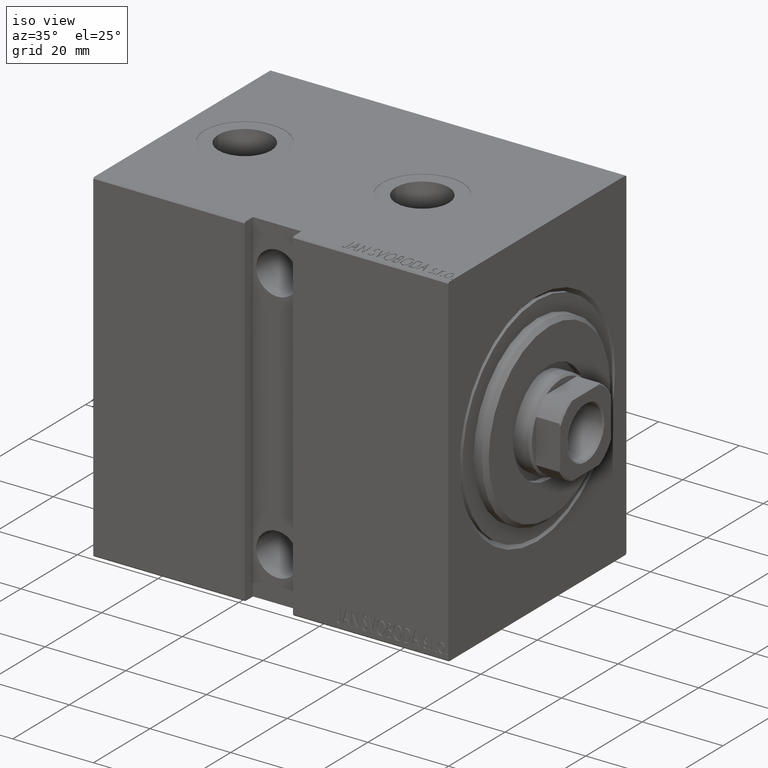
[diagram: clean part render]
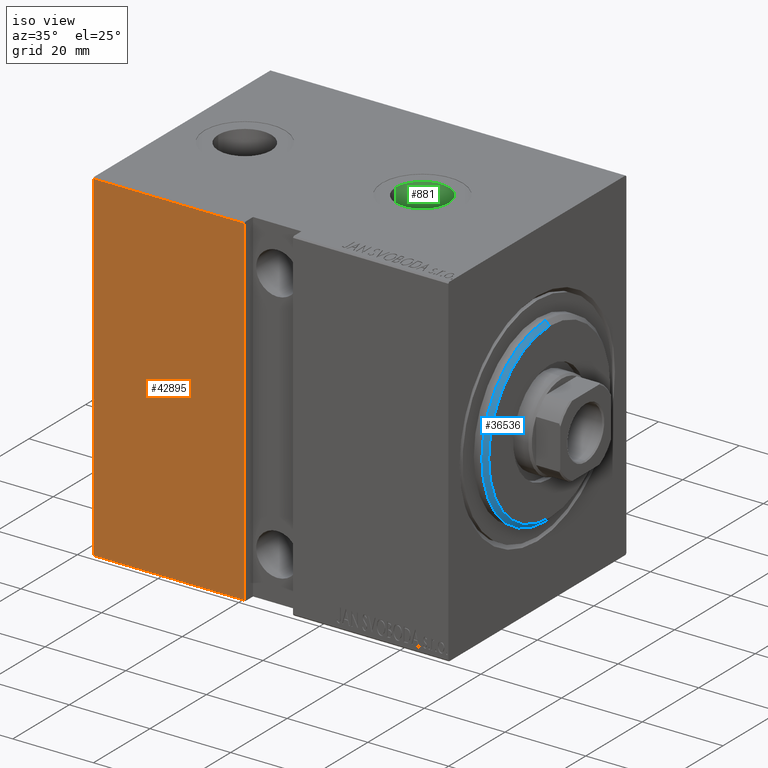
[diagram: same view with three faces highlighted in distinct colors, each labeled with its STEP entity id]
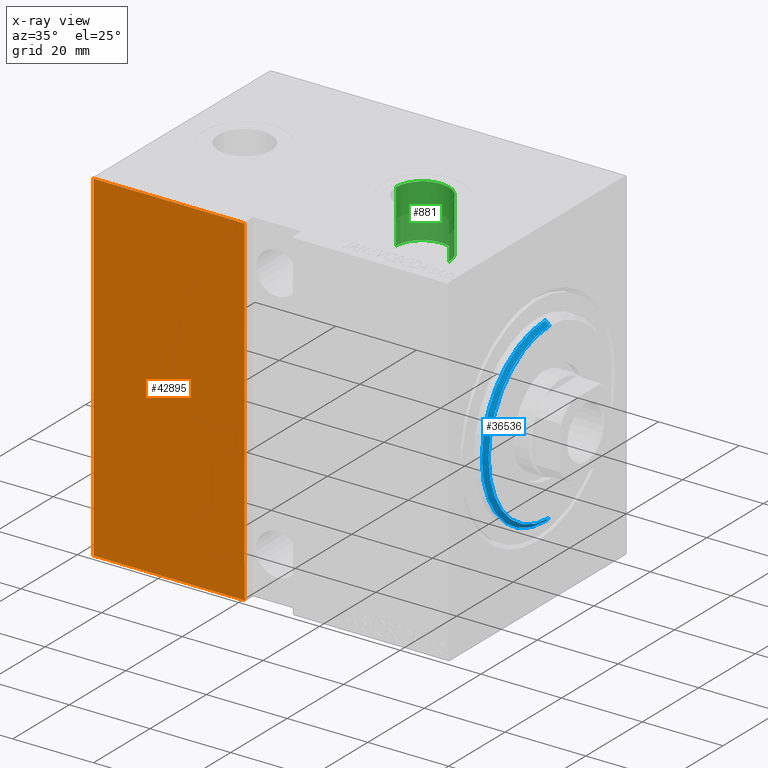
[diagram: x-ray of the same camera — body ghosted, the three highlighted faces saturated]
A machine part, iso view with three faces highlighted in distinct colors.
The next image is the same camera in x-ray (body ghosted, the three faces saturated) — at least one of them is partly hidden behind the body in this view.
Their STEP definitions:

[orange] entity #42895 — the highlighted planar face has unit normal (-0, 1, -0).
#139 = EDGE_CURVE ( 'NONE', #5628, #21117, #5550, .T. ) ;
#730 = PLANE ( 'NONE',  #8595 ) ;
#834 = VERTEX_POINT ( 'NONE', #21689 ) ;
#1500 = CARTESIAN_POINT ( 'NONE',  ( 50.49999999999999289, 31.50000000000000711, -42.50000000000000711 ) ) ;
#2808 = ORIENTED_EDGE ( 'NONE', *, *, #38227, .F. ) ;
#3065 = EDGE_LOOP ( 'NONE', ( #2808, #35762, #42052, #30394 ) ) ;
#5334 = CARTESIAN_POINT ( 'NONE',  ( 88.00000000000000000, 31.50000000000000000, 42.20000000000001705 ) ) ;
#5550 = LINE ( 'NONE', #5334, #21974 ) ;
#5628 = VERTEX_POINT ( 'NONE', #11309 ) ;
#8595 = AXIS2_PLACEMENT_3D ( 'NONE', #40815, #37254, #23863 ) ;
#9120 = LINE ( 'NONE', #29597, #38135 ) ;
#11309 = CARTESIAN_POINT ( 'NONE',  ( 50.50000000000000711, 31.50000000000000711, 42.20000000000001705 ) ) ;
#13982 = CARTESIAN_POINT ( 'NONE',  ( 88.00000000000000000, 31.50000000000000000, 42.20000000000001705 ) ) ;
#15703 = VECTOR ( 'NONE', #25290, 1000.000000000000000 ) ;
#16310 = VECTOR ( 'NONE', #40816, 1000.000000000000000 ) ;
#19114 = DIRECTION ( 'NONE',  ( 1.000000000000000000, 0.000000000000000000, 0.000000000000000000 ) ) ;
#21117 = VERTEX_POINT ( 'NONE', #13982 ) ;
#21689 = CARTESIAN_POINT ( 'NONE',  ( 50.49999999999999289, 31.50000000000000711, -42.20000000000000284 ) ) ;
#21974 = VECTOR ( 'NONE', #19114, 1000.000000000000000 ) ;
#23863 = DIRECTION ( 'NONE',  ( 0.000000000000000000, 1.632680918566406300E-16, -1.000000000000000000 ) ) ;
#24309 = CARTESIAN_POINT ( 'NONE',  ( 88.00000000000000000, 31.50000000000001421, -42.50000000000000711 ) ) ;
#24413 = CARTESIAN_POINT ( 'NONE',  ( 88.00000000000000000, 31.50000000000001421, -42.20000000000000284 ) ) ;
#25290 = DIRECTION ( 'NONE',  ( -1.632680918566407286E-16, -0.000000000000000000, -1.000000000000000000 ) ) ;
#27873 = FACE_OUTER_BOUND ( 'NONE', #3065, .T. ) ;
#28869 = EDGE_CURVE ( 'NONE', #43594, #834, #9120, .T. ) ;
#29597 = CARTESIAN_POINT ( 'NONE',  ( 88.00000000000000000, 31.50000000000001421, -42.20000000000000284 ) ) ;
#30394 = ORIENTED_EDGE ( 'NONE', *, *, #139, .T. ) ;
#30565 = LINE ( 'NONE', #24309, #16310 ) ;
#35555 = LINE ( 'NONE', #1500, #15703 ) ;
#35762 = ORIENTED_EDGE ( 'NONE', *, *, #28869, .T. ) ;
#37254 = DIRECTION ( 'NONE',  ( 0.000000000000000000, -1.000000000000000000, -1.632680918566406300E-16 ) ) ;
#38135 = VECTOR ( 'NONE', #43195, 1000.000000000000000 ) ;
#38227 = EDGE_CURVE ( 'NONE', #43594, #21117, #30565, .T. ) ;
#40815 = CARTESIAN_POINT ( 'NONE',  ( 88.00000000000000000, 31.50000000000001421, -42.50000000000000711 ) ) ;
#40816 = DIRECTION ( 'NONE',  ( 0.000000000000000000, -1.632680918566406300E-16, 1.000000000000000000 ) ) ;
#42052 = ORIENTED_EDGE ( 'NONE', *, *, #42548, .F. ) ;
#42548 = EDGE_CURVE ( 'NONE', #5628, #834, #35555, .T. ) ;
#42895 = ADVANCED_FACE ( 'NONE', ( #27873 ), #730, .F. ) ;
#43195 = DIRECTION ( 'NONE',  ( -1.000000000000000000, 0.000000000000000000, 0.000000000000000000 ) ) ;
#43594 = VERTEX_POINT ( 'NONE', #24413 ) ;

[blue] entity #36536 — the highlighted conical surface has half-angle 45 deg.
#64 = CIRCLE ( 'NONE', #42728, 22.50000000000000355 ) ;
#97 = CARTESIAN_POINT ( 'NONE',  ( 3.000000000000000000, 0.000000000000000000, 21.50000000000001066 ) ) ;
#2923 = DIRECTION ( 'NONE',  ( -0.7071067811865487940, 8.659560562354919300E-17, -0.7071067811865463515 ) ) ;
#5108 = EDGE_CURVE ( 'NONE', #10985, #33948, #31202, .T. ) ;
#5530 = DIRECTION ( 'NONE',  ( 0.000000000000000000, 0.000000000000000000, 1.000000000000000000 ) ) ;
#5609 = AXIS2_PLACEMENT_3D ( 'NONE', #9528, #23524, #5530 ) ;
#8308 = LINE ( 'NONE', #18975, #20096 ) ;
#9358 = ORIENTED_EDGE ( 'NONE', *, *, #16645, .T. ) ;
#9528 = CARTESIAN_POINT ( 'NONE',  ( 3.000000000000000000, 0.000000000000000000, 0.000000000000000000 ) ) ;
#9873 = EDGE_CURVE ( 'NONE', #21773, #18741, #64, .T. ) ;
#10985 = VERTEX_POINT ( 'NONE', #97 ) ;
#11476 = DIRECTION ( 'NONE',  ( 1.000000000000000000, -0.000000000000000000, 0.000000000000000000 ) ) ;
#12258 = CARTESIAN_POINT ( 'NONE',  ( 2.000000000000006217, 0.000000000000000000, 22.50000000000000355 ) ) ;
#16645 = EDGE_CURVE ( 'NONE', #10985, #18741, #8308, .T. ) ;
#17919 = CARTESIAN_POINT ( 'NONE',  ( 3.000000000000000000, 0.000000000000000000, 0.000000000000000000 ) ) ;
#18741 = VERTEX_POINT ( 'NONE', #12258 ) ;
#18975 = CARTESIAN_POINT ( 'NONE',  ( 3.000000000000000000, 0.000000000000000000, 21.50000000000001066 ) ) ;
#19401 = VECTOR ( 'NONE', #2923, 1000.000000000000000 ) ;
#19706 = EDGE_CURVE ( 'NONE', #33948, #21773, #30713, .T. ) ;
#20096 = VECTOR ( 'NONE', #35263, 1000.000000000000000 ) ;
#21773 = VERTEX_POINT ( 'NONE', #38157 ) ;
#23524 = DIRECTION ( 'NONE',  ( -1.000000000000000000, 0.000000000000000000, 0.000000000000000000 ) ) ;
#23947 = ORIENTED_EDGE ( 'NONE', *, *, #19706, .F. ) ;
#25965 = CARTESIAN_POINT ( 'NONE',  ( 2.000000000000006217, 0.000000000000000000, 0.000000000000000000 ) ) ;
#29568 = FACE_OUTER_BOUND ( 'NONE', #33093, .T. ) ;
#30277 = CARTESIAN_POINT ( 'NONE',  ( 3.000000000000000000, 2.632990618166810813E-15, -21.50000000000001066 ) ) ;
#30713 = LINE ( 'NONE', #30277, #19401 ) ;
#31202 = CIRCLE ( 'NONE', #36903, 21.50000000000001066 ) ;
#31520 = DIRECTION ( 'NONE',  ( 0.000000000000000000, 0.000000000000000000, -1.000000000000000000 ) ) ;
#33093 = EDGE_LOOP ( 'NONE', ( #23947, #39903, #9358, #42331 ) ) ;
#33326 = DIRECTION ( 'NONE',  ( 0.000000000000000000, 0.000000000000000000, -1.000000000000000000 ) ) ;
#33948 = VERTEX_POINT ( 'NONE', #34123 ) ;
#34123 = CARTESIAN_POINT ( 'NONE',  ( 3.000000000000000000, 2.694222958124177993E-15, -21.50000000000001066 ) ) ;
#35263 = DIRECTION ( 'NONE',  ( -0.7071067811865487940, 0.000000000000000000, 0.7071067811865463515 ) ) ;
#35797 = DIRECTION ( 'NONE',  ( -1.000000000000000000, 0.000000000000000000, 0.000000000000000000 ) ) ;
#36536 = ADVANCED_FACE ( 'NONE', ( #29568 ), #37574, .T. ) ;
#36903 = AXIS2_PLACEMENT_3D ( 'NONE', #17919, #11476, #31520 ) ;
#37574 = CONICAL_SURFACE ( 'NONE', #5609, 21.50000000000001066, 0.7853981633974466137 ) ;
#38157 = CARTESIAN_POINT ( 'NONE',  ( 2.000000000000006217, 2.755455298081545172E-15, -22.50000000000000355 ) ) ;
#39903 = ORIENTED_EDGE ( 'NONE', *, *, #5108, .F. ) ;
#42331 = ORIENTED_EDGE ( 'NONE', *, *, #9873, .F. ) ;
#42728 = AXIS2_PLACEMENT_3D ( 'NONE', #25965, #35797, #33326 ) ;

[green] entity #881 — the highlighted cylindrical surface (edge-blend (fillet) strip) has radius 6.58 mm, axis along (0, 0, 1).
#80 = CYLINDRICAL_SURFACE ( 'NONE', #23374, 6.579999999999999183 ) ;
#881 = ADVANCED_FACE ( 'NONE', ( #43949 ), #80, .F. ) ;
#3430 = DIRECTION ( 'NONE',  ( 1.000000000000000000, 0.000000000000000000, 0.000000000000000000 ) ) ;
#4080 = CARTESIAN_POINT ( 'NONE',  ( 21.92000000000000171, -8.556182117781905894E-15, 42.39999999999999147 ) ) ;
#5201 = ORIENTED_EDGE ( 'NONE', *, *, #20268, .T. ) ;
#5822 = CIRCLE ( 'NONE', #17165, 6.579999999999999183 ) ;
#7240 = VERTEX_POINT ( 'NONE', #4080 ) ;
#9558 = LINE ( 'NONE', #37588, #30781 ) ;
#11565 = AXIS2_PLACEMENT_3D ( 'NONE', #38113, #27849, #35209 ) ;
#12347 = EDGE_CURVE ( 'NONE', #27295, #35977, #5822, .T. ) ;
#13334 = VERTEX_POINT ( 'NONE', #38309 ) ;
#17165 = AXIS2_PLACEMENT_3D ( 'NONE', #24032, #43682, #30295 ) ;
#18439 = CARTESIAN_POINT ( 'NONE',  ( 21.92000000000000171, -8.556182117781905894E-15, 29.23999999999999488 ) ) ;
#18611 = EDGE_CURVE ( 'NONE', #7240, #13334, #22191, .T. ) ;
#20268 = EDGE_CURVE ( 'NONE', #27295, #7240, #9558, .T. ) ;
#20491 = EDGE_LOOP ( 'NONE', ( #39527, #5201, #22027, #35924 ) ) ;
#21628 = LINE ( 'NONE', #31663, #25546 ) ;
#22027 = ORIENTED_EDGE ( 'NONE', *, *, #18611, .T. ) ;
#22191 = CIRCLE ( 'NONE', #11565, 6.579999999999999183 ) ;
#23118 = DIRECTION ( 'NONE',  ( -0.000000000000000000, -0.000000000000000000, 1.000000000000000000 ) ) ;
#23374 = AXIS2_PLACEMENT_3D ( 'NONE', #33051, #40610, #3430 ) ;
#24032 = CARTESIAN_POINT ( 'NONE',  ( 28.50000000000000000, -9.361999711620863359E-15, 29.23999999999999488 ) ) ;
#25546 = VECTOR ( 'NONE', #28312, 1000.000000000000000 ) ;
#27295 = VERTEX_POINT ( 'NONE', #18439 ) ;
#27849 = DIRECTION ( 'NONE',  ( 0.000000000000000000, 0.000000000000000000, 1.000000000000000000 ) ) ;
#28312 = DIRECTION ( 'NONE',  ( -0.000000000000000000, -0.000000000000000000, 1.000000000000000000 ) ) ;
#30295 = DIRECTION ( 'NONE',  ( 1.000000000000000000, 0.000000000000000000, 0.000000000000000000 ) ) ;
#30781 = VECTOR ( 'NONE', #23118, 1000.000000000000000 ) ;
#31663 = CARTESIAN_POINT ( 'NONE',  ( 35.07999999999999829, -9.361999711620863359E-15, 29.23999999999999488 ) ) ;
#33051 = CARTESIAN_POINT ( 'NONE',  ( 28.50000000000000000, -9.361999711620863359E-15, 29.23999999999999488 ) ) ;
#34409 = CARTESIAN_POINT ( 'NONE',  ( 35.07999999999999829, -9.361999711620863359E-15, 29.23999999999999488 ) ) ;
#35209 = DIRECTION ( 'NONE',  ( 1.000000000000000000, 0.000000000000000000, 0.000000000000000000 ) ) ;
#35924 = ORIENTED_EDGE ( 'NONE', *, *, #38336, .F. ) ;
#35977 = VERTEX_POINT ( 'NONE', #34409 ) ;
#37588 = CARTESIAN_POINT ( 'NONE',  ( 21.92000000000000171, -8.556182117781905894E-15, 29.23999999999999488 ) ) ;
#38113 = CARTESIAN_POINT ( 'NONE',  ( 28.50000000000000000, -9.361999711620863359E-15, 42.39999999999999147 ) ) ;
#38309 = CARTESIAN_POINT ( 'NONE',  ( 35.07999999999999829, -9.361999711620863359E-15, 42.39999999999999147 ) ) ;
#38336 = EDGE_CURVE ( 'NONE', #35977, #13334, #21628, .T. ) ;
#39527 = ORIENTED_EDGE ( 'NONE', *, *, #12347, .F. ) ;
#40610 = DIRECTION ( 'NONE',  ( -0.000000000000000000, -0.000000000000000000, 1.000000000000000000 ) ) ;
#43682 = DIRECTION ( 'NONE',  ( 0.000000000000000000, 0.000000000000000000, 1.000000000000000000 ) ) ;
#43949 = FACE_OUTER_BOUND ( 'NONE', #20491, .T. ) ;